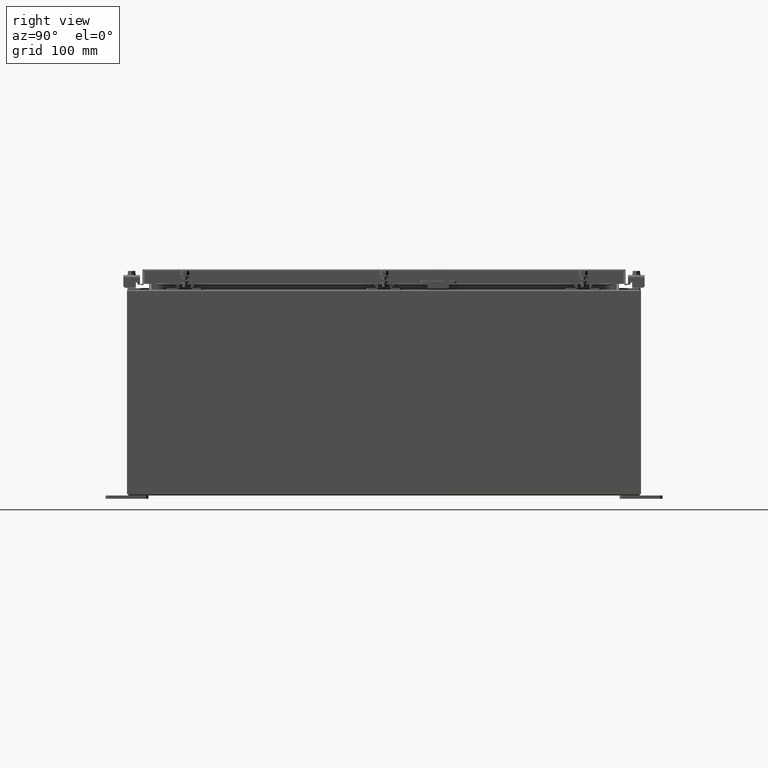
[diagram: clean part render]
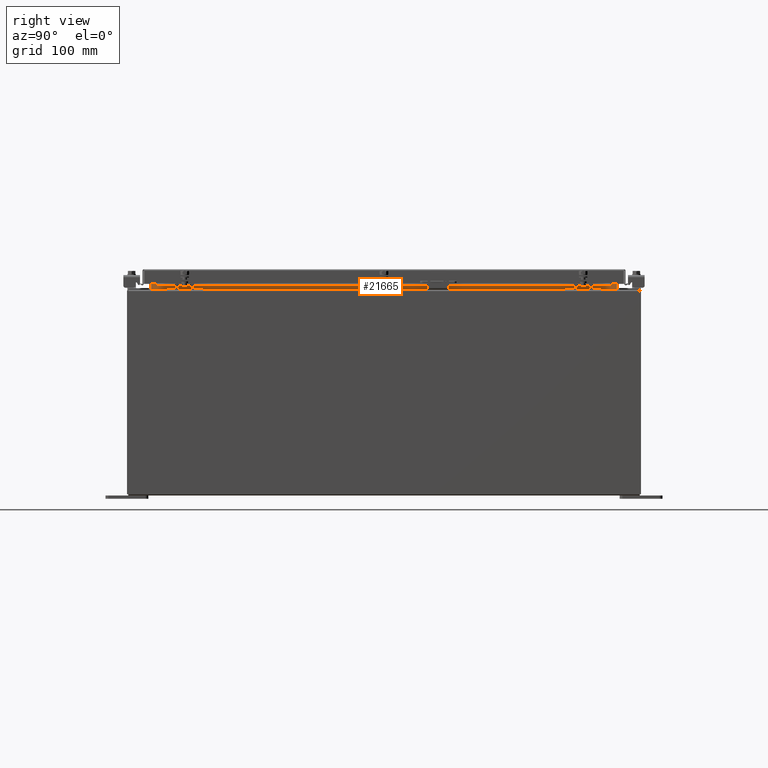
[diagram: same view with one face highlighted and labeled with its STEP entity id]
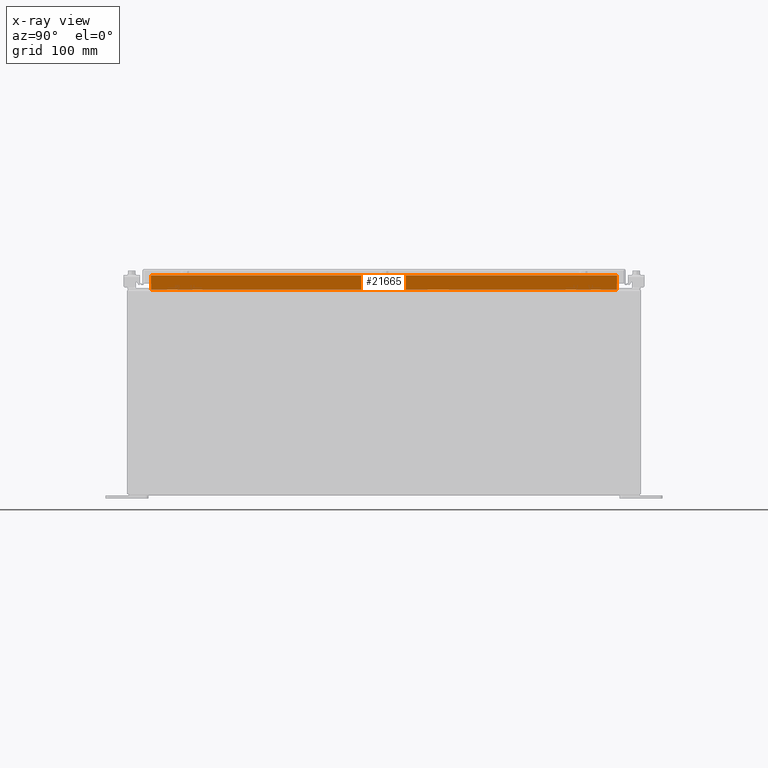
[diagram: x-ray of the same camera — body ghosted, the highlighted face saturated]
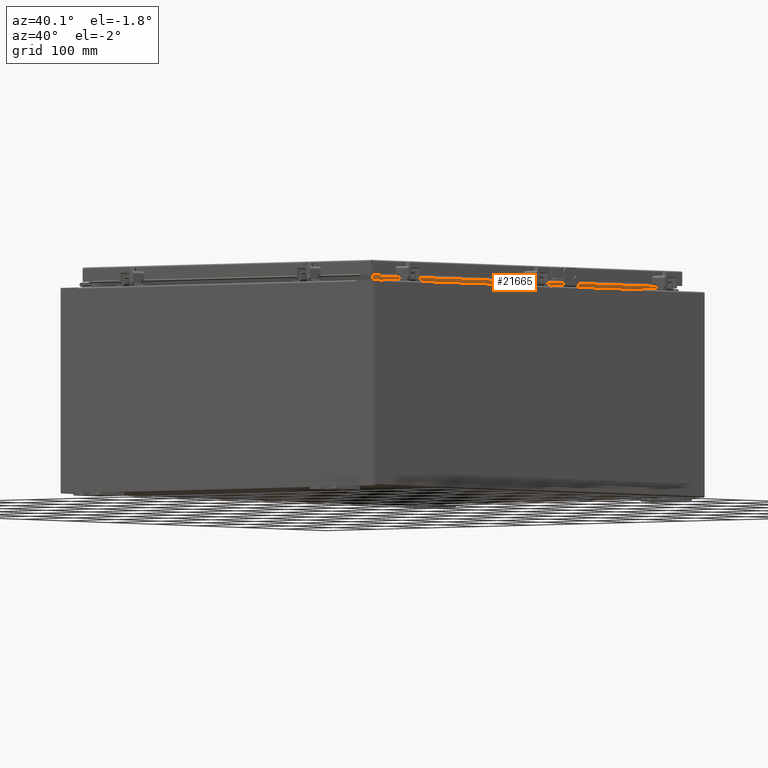
[diagram: same view with one face highlighted and labeled with its STEP entity id]
A machine part, right view. The second image highlights one B-rep face of the part: STEP entity #21665.
The next image is the same camera in x-ray: the body ghosted, the highlighted face saturated — about 0% of this face is hidden behind the body in this view.
A second angle (auxiliary view) of the same face is appended — the face is thin or edge-on in the first view.
In plain terms, the highlighted planar face has unit normal (1, 0, -0).
Its self-contained STEP definition (entity closure, byte-faithful):
#489 = EDGE_CURVE ( 'NONE', #23530, #12776, #20117, .T. ) ;
#1449 = CARTESIAN_POINT ( 'NONE',  ( 10.69970000000003900, 13.59374999999999800, 11.92530000000000900 ) ) ;
#2467 = FACE_OUTER_BOUND ( 'NONE', #25675, .T. ) ;
#2704 = DIRECTION ( 'NONE',  ( 4.723826639860397600E-015, -0.0000000000000000000, 1.000000000000000000 ) ) ;
#3320 = CARTESIAN_POINT ( 'NONE',  ( 10.69970000000004300, -13.59374999999999300, 12.76290000000001100 ) ) ;
#5239 = EDGE_CURVE ( 'NONE', #8146, #23530, #25452, .T. ) ;
#6162 = ORIENTED_EDGE ( 'NONE', *, *, #15653, .F. ) ;
#6408 = VECTOR ( 'NONE', #23578, 39.37007874015748100 ) ;
#6674 = AXIS2_PLACEMENT_3D ( 'NONE', #27407, #33268, #15898 ) ;
#8146 = VERTEX_POINT ( 'NONE', #16500 ) ;
#8252 = ORIENTED_EDGE ( 'NONE', *, *, #5239, .F. ) ;
#9188 = VECTOR ( 'NONE', #37381, 39.37007874015748100 ) ;
#12263 = CARTESIAN_POINT ( 'NONE',  ( 10.69970000000004300, -13.59374999999999800, 12.85060000000001100 ) ) ;
#12776 = VERTEX_POINT ( 'NONE', #13444 ) ;
#13087 = ORIENTED_EDGE ( 'NONE', *, *, #25212, .F. ) ;
#13383 = CARTESIAN_POINT ( 'NONE',  ( 10.69970000000004300, 13.59374999999999300, 12.76290000000001100 ) ) ;
#13444 = CARTESIAN_POINT ( 'NONE',  ( 10.69970000000004300, -13.59374999999999800, 12.76290000000001100 ) ) ;
#15437 = LINE ( 'NONE', #1449, #29929 ) ;
#15653 = EDGE_CURVE ( 'NONE', #21769, #8146, #15437, .T. ) ;
#15898 = DIRECTION ( 'NONE',  ( -4.723826639860386500E-015, 0.0000000000000000000, -1.000000000000000000 ) ) ;
#16500 = CARTESIAN_POINT ( 'NONE',  ( 10.69970000000003900, 13.59375000000000000, 11.93830000000001200 ) ) ;
#18805 = DIRECTION ( 'NONE',  ( -4.723826639860386500E-015, -0.0000000000000000000, -1.000000000000000000 ) ) ;
#20117 = LINE ( 'NONE', #12263, #37304 ) ;
#20893 = LINE ( 'NONE', #3320, #6408 ) ;
#21665 = ADVANCED_FACE ( 'NONE', ( #2467 ), #24530, .T. ) ;
#21769 = VERTEX_POINT ( 'NONE', #13383 ) ;
#23530 = VERTEX_POINT ( 'NONE', #30054 ) ;
#23578 = DIRECTION ( 'NONE',  ( 0.0000000000000000000, 1.000000000000000000, 0.0000000000000000000 ) ) ;
#24530 = PLANE ( 'NONE',  #6674 ) ;
#25212 = EDGE_CURVE ( 'NONE', #12776, #21769, #20893, .T. ) ;
#25452 = LINE ( 'NONE', #32200, #9188 ) ;
#25675 = EDGE_LOOP ( 'NONE', ( #6162, #13087, #31634, #8252 ) ) ;
#27407 = CARTESIAN_POINT ( 'NONE',  ( 10.69969999999998200, 0.0000000000000000000, -5.054352789851408700E-014 ) ) ;
#29929 = VECTOR ( 'NONE', #18805, 39.37007874015748100 ) ;
#30054 = CARTESIAN_POINT ( 'NONE',  ( 10.69970000000003900, -13.59375000000000000, 11.93830000000001200 ) ) ;
#31634 = ORIENTED_EDGE ( 'NONE', *, *, #489, .F. ) ;
#32200 = CARTESIAN_POINT ( 'NONE',  ( 10.69970000000004100, 13.59374999999999800, 11.93830000000000900 ) ) ;
#33268 = DIRECTION ( 'NONE',  ( 1.000000000000000000, 0.0000000000000000000, -4.723826639860386500E-015 ) ) ;
#37304 = VECTOR ( 'NONE', #2704, 39.37007874015748100 ) ;
#37381 = DIRECTION ( 'NONE',  ( 8.038541222736223700E-017, -1.000000000000000000, 1.607708244547244700E-016 ) ) ;